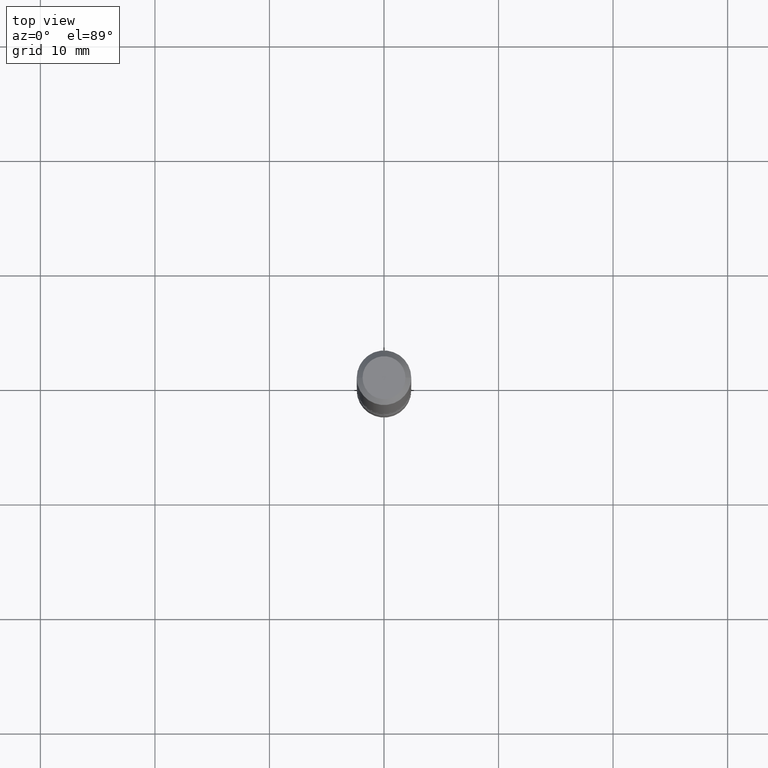
[diagram: clean part render]
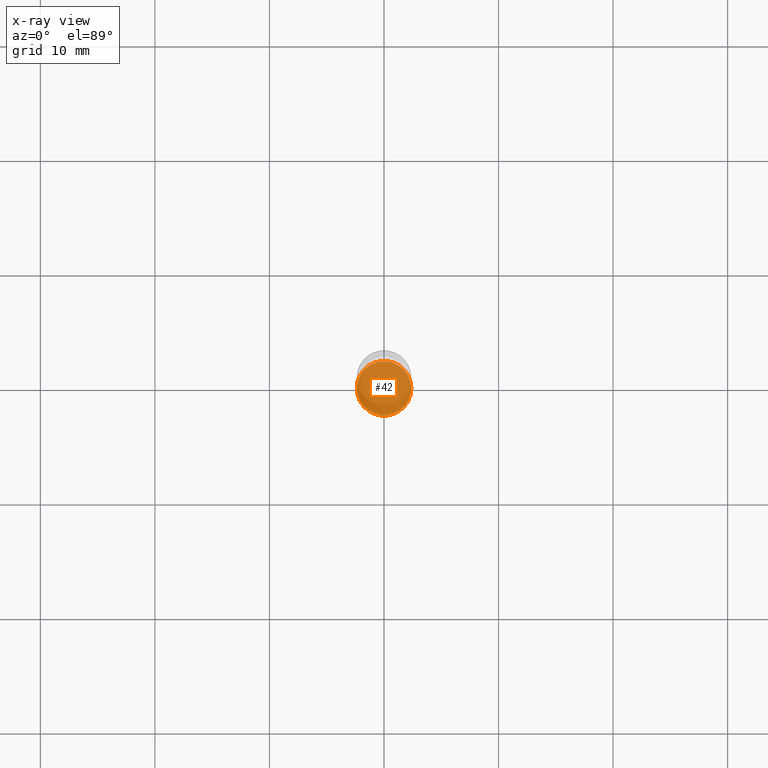
[diagram: x-ray — body ghosted, one internal face saturated and labeled with its STEP entity id]
A machine part, top view, then the same camera in x-ray: the body is ghosted and one INTERNAL B-rep face — a face not visible from any outside direction — is saturated and labeled: STEP entity #42.
In plain terms, the highlighted planar face has unit normal (0, -0, -1).
Its self-contained STEP definition (entity closure, byte-faithful):
#3 = CARTESIAN_POINT ( 'NONE',  ( 8.726388948129611336E-30, -1.361158663068067946E-14, -2.125000000000000000 ) ) ;
#42 = ADVANCED_FACE ( 'NONE', ( #281 ), #507, .F. ) ;
#61 = CARTESIAN_POINT ( 'NONE',  ( 5.196621213143415268E-29, -7.419397845041685201E-15, -2.125000000000000000 ) ) ;
#84 = EDGE_CURVE ( 'NONE', #138, #265, #154, .T. ) ;
#90 = EDGE_LOOP ( 'NONE', ( #536, #168 ) ) ;
#100 = CIRCLE ( 'NONE', #547, 0.09375000000000002776 ) ;
#113 = DIRECTION ( 'NONE',  ( 1.000000000000000000, -6.982962677686270655E-15, 0.000000000000000000 ) ) ;
#138 = VERTEX_POINT ( 'NONE', #510 ) ;
#139 = DIRECTION ( 'NONE',  ( -2.445468806185136597E-29, 3.491481338843145583E-15, 1.000000000000000000 ) ) ;
#154 = CIRCLE ( 'NONE', #489, 0.09375000000000002776 ) ;
#168 = ORIENTED_EDGE ( 'NONE', *, *, #283, .T. ) ;
#253 = CARTESIAN_POINT ( 'NONE',  ( -0.09375000000000002776, -7.381730671258356228E-15, -2.125000000000000000 ) ) ;
#265 = VERTEX_POINT ( 'NONE', #253 ) ;
#274 = DIRECTION ( 'NONE',  ( 2.438088387897960049E-29, -3.491481338843145188E-15, -1.000000000000000000 ) ) ;
#281 = FACE_OUTER_BOUND ( 'NONE', #90, .T. ) ;
#283 = EDGE_CURVE ( 'NONE', #265, #138, #100, .T. ) ;
#413 = AXIS2_PLACEMENT_3D ( 'NONE', #3, #274, #560 ) ;
#479 = DIRECTION ( 'NONE',  ( 1.000000000000000000, -6.982962677686270655E-15, 0.000000000000000000 ) ) ;
#489 = AXIS2_PLACEMENT_3D ( 'NONE', #503, #514, #113 ) ;
#503 = CARTESIAN_POINT ( 'NONE',  ( 5.196621213143415268E-29, -7.419397845041685201E-15, -2.125000000000000000 ) ) ;
#507 = PLANE ( 'NONE',  #413 ) ;
#510 = CARTESIAN_POINT ( 'NONE',  ( 0.09375000000000002776, -8.074050596074771916E-15, -2.125000000000000000 ) ) ;
#514 = DIRECTION ( 'NONE',  ( -2.445468806185136597E-29, 3.491481338843145583E-15, 1.000000000000000000 ) ) ;
#536 = ORIENTED_EDGE ( 'NONE', *, *, #84, .T. ) ;
#547 = AXIS2_PLACEMENT_3D ( 'NONE', #61, #139, #479 ) ;
#560 = DIRECTION ( 'NONE',  ( -1.000000000000000000, 6.982962677686265922E-15, -4.876176775795935793E-29 ) ) ;